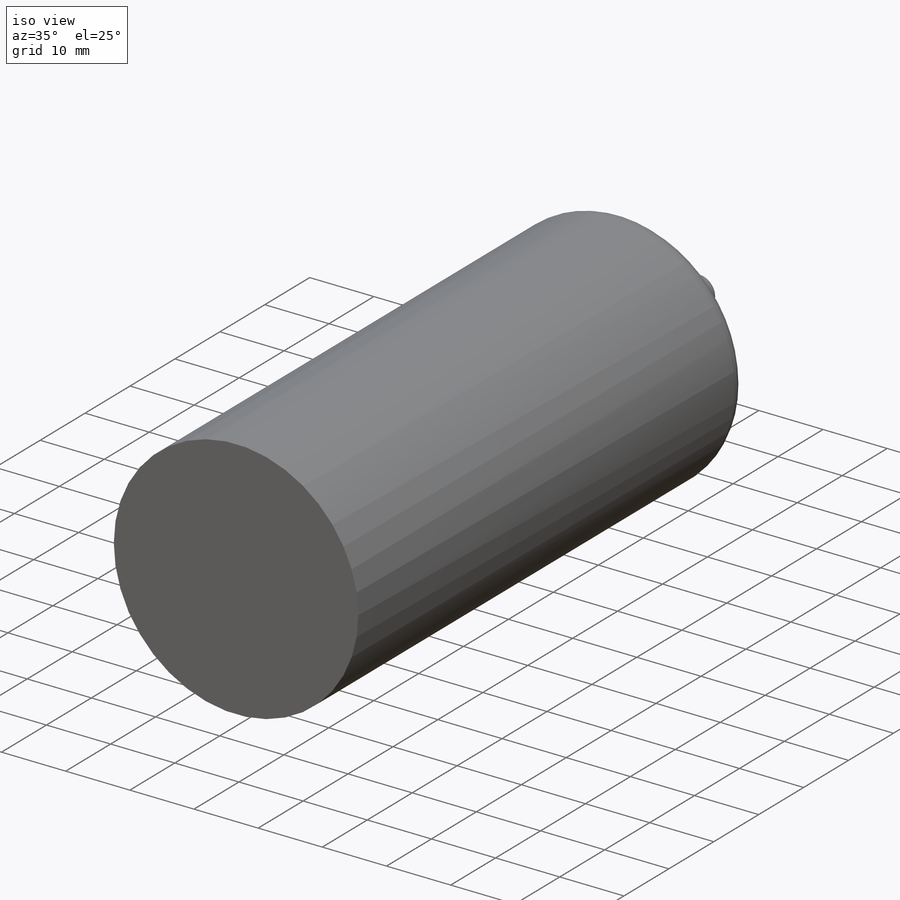
[diagram: iso view]
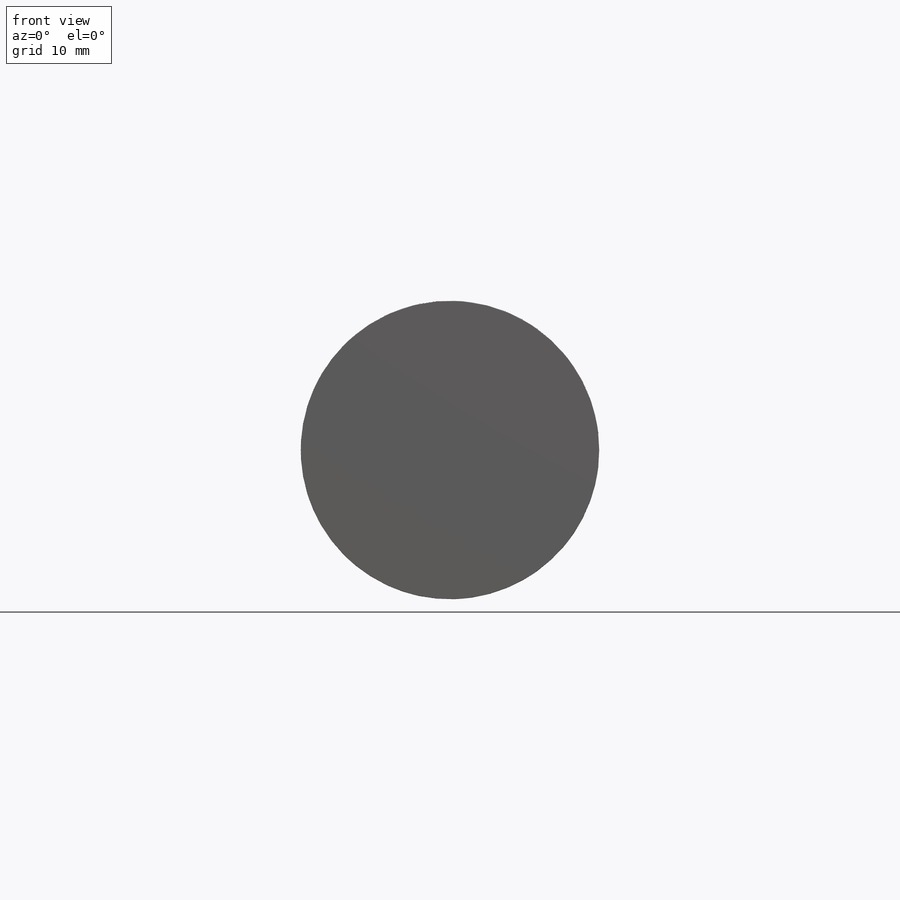
[diagram: front view]
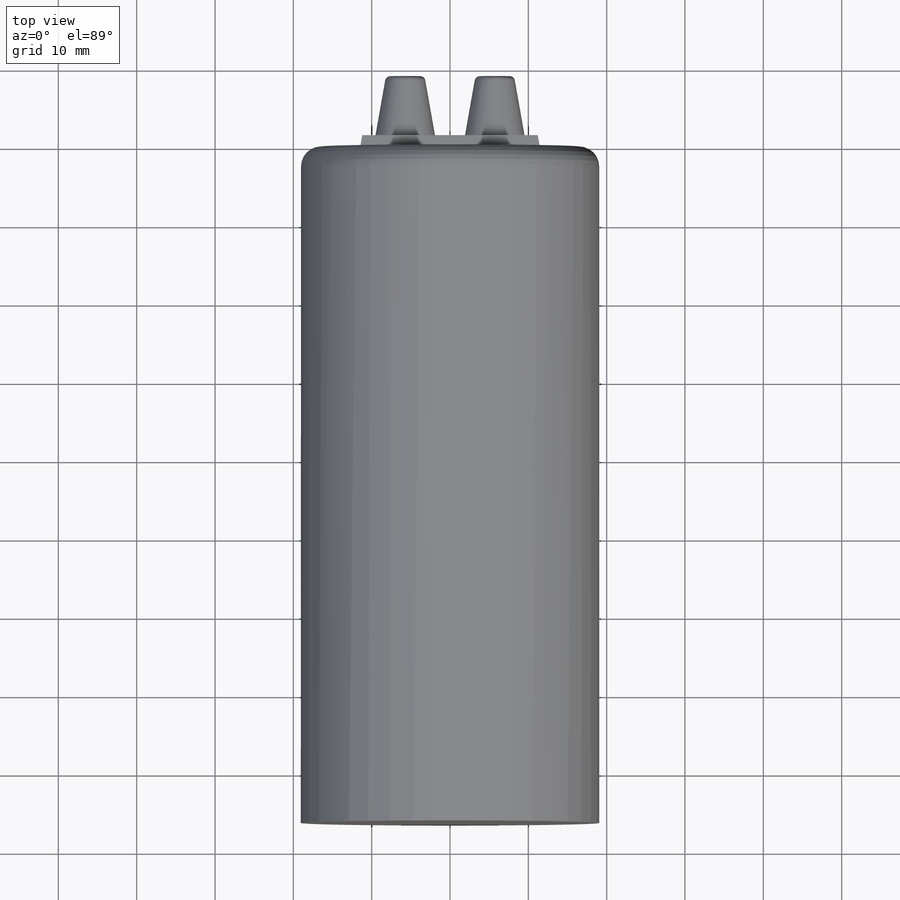
[diagram: top view]
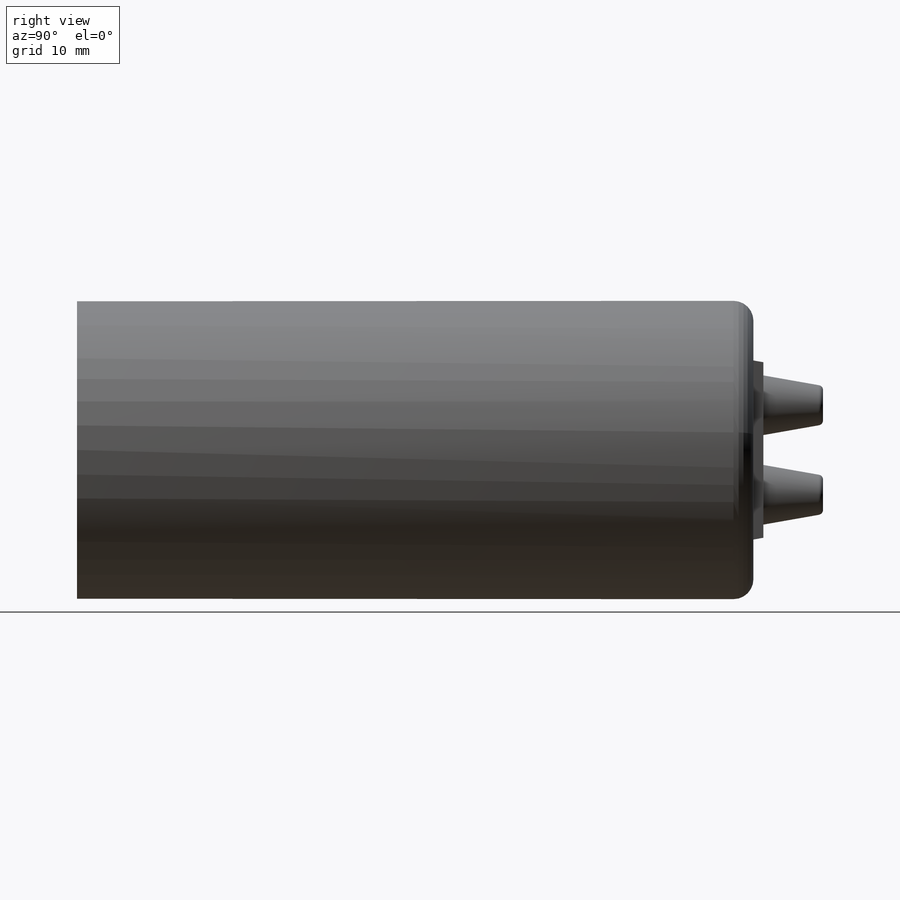
[diagram: right view]
SOLIDWORKS PART (.sldprt)
format: sldprt  version: not decoded by parser v0  size: 246,272 bytes
history: native  units: mm
features: sketch x4, extrude x3, fillet x2, material x1, cut_extrude x1 (+13 scaffold rows collapsed)
feature tree (24):
  scaffold x13  (default folders/planes/origin — collapsed)
  material  "Material <not specified>"
  sketch  "Sketch1"  dims[D1=38.1mm]
  extrude  "Boss-Extrude1"  Depth=86.36mm
  sketch  "Sketch2"  dims[D1=22.86mm]
  extrude  "Boss-Extrude2"  Depth=1.27mm
  fillet  "Fillet1"  Radius=2.54mm
  sketch  "Sketch3"  dims[D2=7.62mm D1=11.43mm]
  extrude  "Boss-Extrude3"  Depth=7.62mm
  fillet  "Fillet2"  Radius=0.635mm
  sketch  "Sketch4"  dims[D1=2.54mm]
  cut_extrude  "Cut-Extrude1"  Depth=15.24mm
decode coverage: 10 of 10 modeling features carry decoded parameters
note: suppression state not decoded; provenance and decode notes live in map.json
